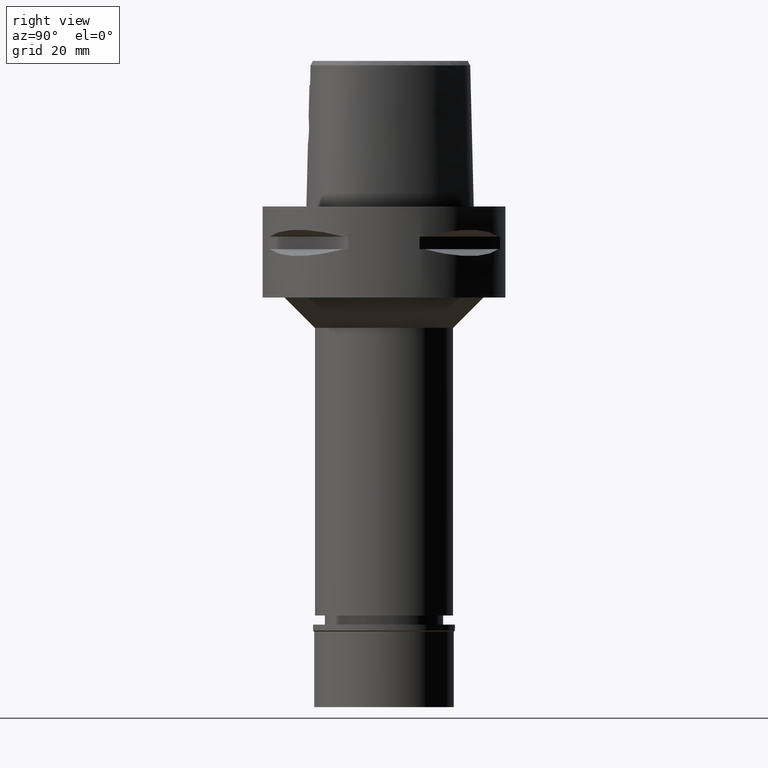
[diagram: clean part render]
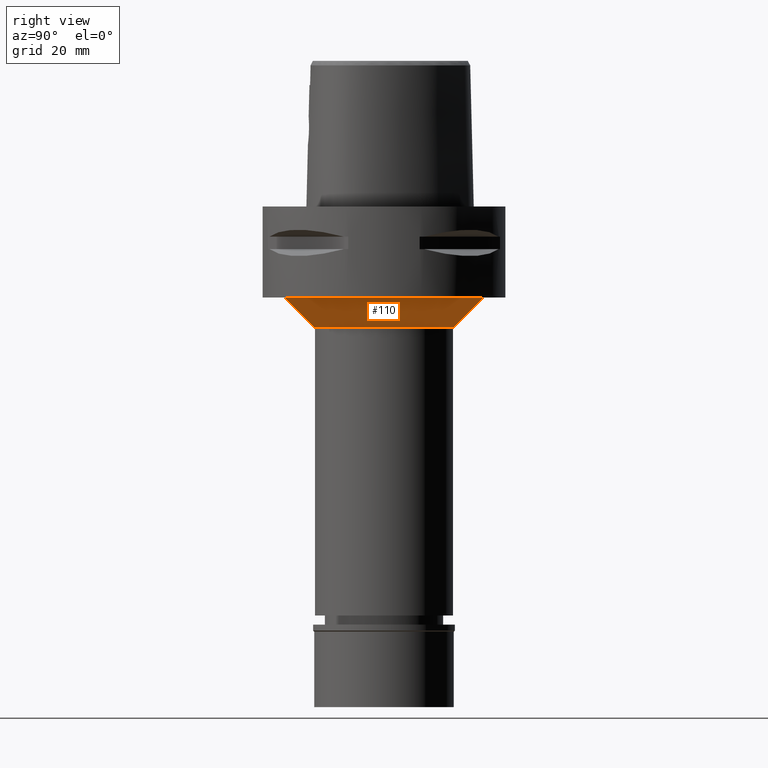
[diagram: same view with one face highlighted and labeled with its STEP entity id]
A machine part, right view. The second image highlights one B-rep face of the part: STEP entity #110.
In plain terms, the highlighted conical surface has half-angle 45 deg.
Its self-contained STEP definition (entity closure, byte-faithful):
#6 = EDGE_CURVE ( 'NONE', #1456, #2200, #1447, .T. ) ;
#110 = ADVANCED_FACE ( 'NONE', ( #1752 ), #1527, .T. ) ;
#175 = CARTESIAN_POINT ( 'NONE',  ( 0.0000000000000000000, 0.0000000000000000000, -35.00000000000000000 ) ) ;
#182 = CIRCLE ( 'NONE', #4547, 22.75000000000000000 ) ;
#218 = CARTESIAN_POINT ( 'NONE',  ( 0.0000000000000000000, 0.0000000000000000000, -30.00000000000000000 ) ) ;
#286 = ORIENTED_EDGE ( 'NONE', *, *, #1521, .T. ) ;
#359 = ORIENTED_EDGE ( 'NONE', *, *, #2565, .T. ) ;
#514 = ORIENTED_EDGE ( 'NONE', *, *, #6, .F. ) ;
#1049 = CARTESIAN_POINT ( 'NONE',  ( 0.0000000000000000000, 32.75000000000000000, -30.00000000000000000 ) ) ;
#1077 = EDGE_LOOP ( 'NONE', ( #286, #359, #4702, #514 ) ) ;
#1172 = EDGE_CURVE ( 'NONE', #2200, #5103, #182, .T. ) ;
#1310 = DIRECTION ( 'NONE',  ( 0.0000000000000000000, 0.0000000000000000000, -1.000000000000000000 ) ) ;
#1421 = DIRECTION ( 'NONE',  ( 0.0000000000000000000, 0.0000000000000000000, 1.000000000000000000 ) ) ;
#1447 = LINE ( 'NONE', #1049, #4126 ) ;
#1456 = VERTEX_POINT ( 'NONE', #4528 ) ;
#1521 = EDGE_CURVE ( 'NONE', #1456, #5087, #1936, .T. ) ;
#1527 = CONICAL_SURFACE ( 'NONE', #3966, 27.75000000000000000, 0.7853981633972997312 ) ;
#1752 = FACE_OUTER_BOUND ( 'NONE', #1077, .T. ) ;
#1817 = DIRECTION ( 'NONE',  ( 0.0000000000000000000, 0.0000000000000000000, -1.000000000000000000 ) ) ;
#1861 = LINE ( 'NONE', #2690, #1862 ) ;
#1862 = VECTOR ( 'NONE', #3073, 1000.000000000000114 ) ;
#1936 = CIRCLE ( 'NONE', #3901, 32.75000000000000000 ) ;
#2200 = VERTEX_POINT ( 'NONE', #2440 ) ;
#2440 = CARTESIAN_POINT ( 'NONE',  ( 0.0000000000000000000, 22.75000000000000000, -40.00000000000000000 ) ) ;
#2565 = EDGE_CURVE ( 'NONE', #5087, #5103, #1861, .T. ) ;
#2608 = CARTESIAN_POINT ( 'NONE',  ( 0.0000000000000000000, -32.75000000000000000, -30.00000000000000000 ) ) ;
#2690 = CARTESIAN_POINT ( 'NONE',  ( 0.0000000000000000000, -32.75000000000000000, -30.00000000000000000 ) ) ;
#3073 = DIRECTION ( 'NONE',  ( 0.0000000000000000000, 0.7071067811865474617, -0.7071067811865474617 ) ) ;
#3314 = DIRECTION ( 'NONE',  ( 0.0000000000000000000, -0.7071067811865474617, -0.7071067811865474617 ) ) ;
#3901 = AXIS2_PLACEMENT_3D ( 'NONE', #218, #1817, #4946 ) ;
#3944 = DIRECTION ( 'NONE',  ( 0.0000000000000000000, 1.000000000000000000, 0.0000000000000000000 ) ) ;
#3966 = AXIS2_PLACEMENT_3D ( 'NONE', #175, #1421, #4511 ) ;
#4126 = VECTOR ( 'NONE', #3314, 1000.000000000000114 ) ;
#4179 = CARTESIAN_POINT ( 'NONE',  ( 0.0000000000000000000, -22.75000000000000000, -40.00000000000000000 ) ) ;
#4326 = CARTESIAN_POINT ( 'NONE',  ( 0.0000000000000000000, 0.0000000000000000000, -40.00000000000000000 ) ) ;
#4511 = DIRECTION ( 'NONE',  ( 0.0000000000000000000, 1.000000000000000000, 0.0000000000000000000 ) ) ;
#4528 = CARTESIAN_POINT ( 'NONE',  ( 0.0000000000000000000, 32.75000000000000000, -30.00000000000000000 ) ) ;
#4547 = AXIS2_PLACEMENT_3D ( 'NONE', #4326, #1310, #3944 ) ;
#4702 = ORIENTED_EDGE ( 'NONE', *, *, #1172, .F. ) ;
#4946 = DIRECTION ( 'NONE',  ( 0.0000000000000000000, 1.000000000000000000, 0.0000000000000000000 ) ) ;
#5087 = VERTEX_POINT ( 'NONE', #2608 ) ;
#5103 = VERTEX_POINT ( 'NONE', #4179 ) ;